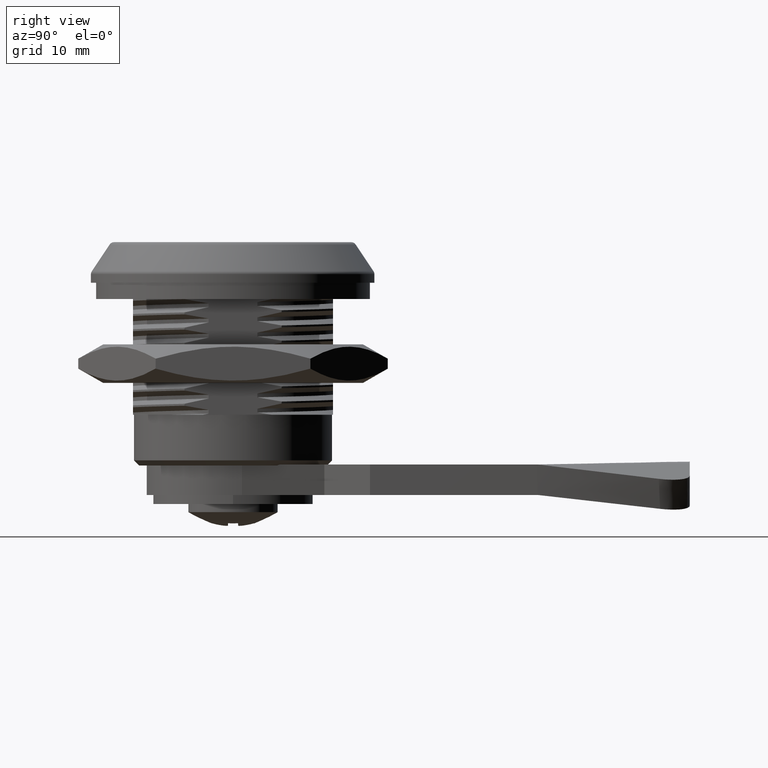
[diagram: clean part render]
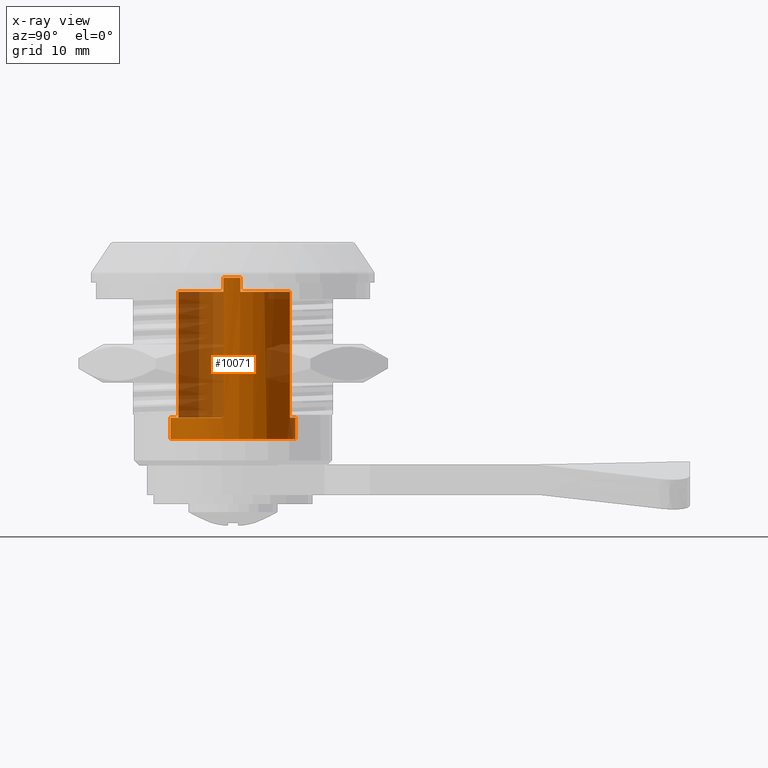
[diagram: x-ray — body ghosted, one internal face saturated and labeled with its STEP entity id]
A machine part, right view, then the same camera in x-ray: the body is ghosted and one INTERNAL B-rep face — a face not visible from any outside direction — is saturated and labeled: STEP entity #10071.
In plain terms, the highlighted cylindrical surface (bore or boss wall) has radius 6.15 mm, axis along (-0, 0, -1).
Its self-contained STEP definition (entity closure, byte-faithful):
#678=LINE('',#13985,#1513);
#679=LINE('',#13989,#1514);
#680=LINE('',#13993,#1515);
#681=LINE('',#13997,#1516);
#682=LINE('',#14000,#1517);
#1513=VECTOR('',#11517,13.6);
#1514=VECTOR('',#11520,1.4);
#1515=VECTOR('',#11523,12.4);
#1516=VECTOR('',#11526,12.4);
#1517=VECTOR('',#11529,12.4);
#2337=B_SPLINE_CURVE_WITH_KNOTS('',3,(#13974,#13975,#13976,#13977,#13978,
#13979,#13980,#13981,#13982,#13983),.UNSPECIFIED.,.F.,.F.,(4,2,2,2,4),(0.0912681116688724,
0.0988971526518753,0.106526193634878,0.114080784898945,0.121635376163012),
 .UNSPECIFIED.);
#2618=FACE_BOUND('',#3289,.T.);
#2694=FACE_OUTER_BOUND('',#3288,.T.);
#3288=EDGE_LOOP('',(#6847));
#3289=EDGE_LOOP('',(#6848,#6849,#6850,#6851,#6852,#6853,#6854,#6855,#6856,
#6857,#6858));
#3961=CIRCLE('',#10693,6.15);
#3962=CIRCLE('',#10694,6.15);
#3963=CIRCLE('',#10695,6.15);
#3964=CIRCLE('',#10696,6.15);
#3965=CIRCLE('',#10697,6.15);
#3966=CIRCLE('',#10698,6.15);
#4262=VERTEX_POINT('',#13968);
#4263=VERTEX_POINT('',#13970);
#4264=VERTEX_POINT('',#13971);
#4265=VERTEX_POINT('',#13973);
#4266=VERTEX_POINT('',#13984);
#4267=VERTEX_POINT('',#13986);
#4268=VERTEX_POINT('',#13988);
#4269=VERTEX_POINT('',#13990);
#4270=VERTEX_POINT('',#13992);
#4271=VERTEX_POINT('',#13994);
#4272=VERTEX_POINT('',#13996);
#4273=VERTEX_POINT('',#13998);
#5293=EDGE_CURVE('',#4262,#4262,#3961,.T.);
#5294=EDGE_CURVE('',#4263,#4264,#3962,.T.);
#5295=EDGE_CURVE('',#4263,#4265,#2337,.T.);
#5296=EDGE_CURVE('',#4266,#4265,#678,.T.);
#5297=EDGE_CURVE('',#4266,#4267,#3963,.T.);
#5298=EDGE_CURVE('',#4267,#4268,#679,.T.);
#5299=EDGE_CURVE('',#4268,#4269,#3964,.T.);
#5300=EDGE_CURVE('',#4270,#4269,#680,.T.);
#5301=EDGE_CURVE('',#4271,#4270,#3965,.T.);
#5302=EDGE_CURVE('',#4271,#4272,#681,.T.);
#5303=EDGE_CURVE('',#4272,#4273,#3966,.T.);
#5304=EDGE_CURVE('',#4264,#4273,#682,.T.);
#6847=ORIENTED_EDGE('',*,*,#5293,.F.);
#6848=ORIENTED_EDGE('',*,*,#5294,.F.);
#6849=ORIENTED_EDGE('',*,*,#5295,.T.);
#6850=ORIENTED_EDGE('',*,*,#5296,.F.);
#6851=ORIENTED_EDGE('',*,*,#5297,.T.);
#6852=ORIENTED_EDGE('',*,*,#5298,.T.);
#6853=ORIENTED_EDGE('',*,*,#5299,.T.);
#6854=ORIENTED_EDGE('',*,*,#5300,.F.);
#6855=ORIENTED_EDGE('',*,*,#5301,.F.);
#6856=ORIENTED_EDGE('',*,*,#5302,.T.);
#6857=ORIENTED_EDGE('',*,*,#5303,.T.);
#6858=ORIENTED_EDGE('',*,*,#5304,.F.);
#9910=CYLINDRICAL_SURFACE('',#10692,6.15);
#10071=ADVANCED_FACE('',(#2694,#2618),#9910,.F.);
#10692=AXIS2_PLACEMENT_3D('',#13967,#11511,#11512);
#10693=AXIS2_PLACEMENT_3D('',#13969,#11513,#11514);
#10694=AXIS2_PLACEMENT_3D('',#13972,#11515,#11516);
#10695=AXIS2_PLACEMENT_3D('',#13987,#11518,#11519);
#10696=AXIS2_PLACEMENT_3D('',#13991,#11521,#11522);
#10697=AXIS2_PLACEMENT_3D('',#13995,#11524,#11525);
#10698=AXIS2_PLACEMENT_3D('',#13999,#11527,#11528);
#11511=DIRECTION('center_axis',(0.,1.,0.));
#11512=DIRECTION('ref_axis',(0.,0.,1.));
#11513=DIRECTION('center_axis',(0.,-1.,0.));
#11514=DIRECTION('ref_axis',(0.,0.,-1.));
#11515=DIRECTION('center_axis',(0.,1.,0.));
#11516=DIRECTION('ref_axis',(0.,0.,-1.));
#11517=DIRECTION('',(0.,1.,0.));
#11518=DIRECTION('center_axis',(0.,-1.,0.));
#11519=DIRECTION('ref_axis',(0.,0.,-1.));
#11520=DIRECTION('',(0.,1.,0.));
#11521=DIRECTION('center_axis',(0.,-1.,0.));
#11522=DIRECTION('ref_axis',(0.,0.,-1.));
#11523=DIRECTION('',(0.,-1.,0.));
#11524=DIRECTION('center_axis',(0.,1.,0.));
#11525=DIRECTION('ref_axis',(0.,0.,-1.));
#11526=DIRECTION('',(0.,-1.,0.));
#11527=DIRECTION('center_axis',(0.,-1.,0.));
#11528=DIRECTION('ref_axis',(0.,0.,-1.));
#11529=DIRECTION('',(0.,-1.,0.));
#13967=CARTESIAN_POINT('Origin',(0.,-24.9487373415292,0.));
#13968=CARTESIAN_POINT('',(0.,19.5222649901887,-6.15));
#13969=CARTESIAN_POINT('Origin',(0.,19.5222649901887,0.));
#13970=CARTESIAN_POINT('',(6.04152298679727,17.4,-1.15000000000006));
#13971=CARTESIAN_POINT('',(-3.,17.4,-5.36865905045198));
#13972=CARTESIAN_POINT('Origin',(0.,17.4,0.));
#13973=CARTESIAN_POINT('',(6.07618301238531,17.2,-0.950000000000063));
#13974=CARTESIAN_POINT('Ctrl Pts',(6.04152298679727,17.4,-1.15000000000007));
#13975=CARTESIAN_POINT('Ctrl Pts',(6.04627821559427,17.4,-1.12501841383962));
#13976=CARTESIAN_POINT('Ctrl Pts',(6.05118600548376,17.395035223443,-1.09829833835802));
#13977=CARTESIAN_POINT('Ctrl Pts',(6.0599276955195,17.3746737190757,-1.04900818221098));
#13978=CARTESIAN_POINT('Ctrl Pts',(6.06376564743862,17.3592802051198,-1.02643749264527));
#13979=CARTESIAN_POINT('Ctrl Pts',(6.06967464703085,17.3237367869638,-0.990894074489284));
#13980=CARTESIAN_POINT('Ctrl Pts',(6.07214954983587,17.3012926153455,-0.975495676143038));
#13981=CARTESIAN_POINT('Ctrl Pts',(6.07540154642663,17.2520147050378,-0.955049501581927));
#13982=CARTESIAN_POINT('Ctrl Pts',(6.07618301238531,17.2251819708802,-0.950000000000067));
#13983=CARTESIAN_POINT('Ctrl Pts',(6.07618301238531,17.2,-0.950000000000067));
#13984=CARTESIAN_POINT('',(6.07618301238531,3.6,-0.950000000000063));
#13985=CARTESIAN_POINT('',(6.07618301238531,3.4,-0.950000000000063));
#13986=CARTESIAN_POINT('',(6.10695301027855,3.6,0.726377952755841));
#13987=CARTESIAN_POINT('Origin',(0.,3.6,0.));
#13988=CARTESIAN_POINT('',(6.10695301027855,5.,0.726377952755841));
#13989=CARTESIAN_POINT('',(6.10695301027855,-24.9487373415292,0.726377952755841));
#13990=CARTESIAN_POINT('',(2.55,5.,5.59642743185329));
#13991=CARTESIAN_POINT('Origin',(0.,5.,0.));
#13992=CARTESIAN_POINT('',(2.55,17.4,5.59642743185329));
#13993=CARTESIAN_POINT('',(2.55,17.4,5.59642743185329));
#13994=CARTESIAN_POINT('',(-2.55,17.4,5.59642743185329));
#13995=CARTESIAN_POINT('Origin',(0.,17.4,0.));
#13996=CARTESIAN_POINT('',(-2.55,5.,5.59642743185329));
#13997=CARTESIAN_POINT('',(-2.55,17.4,5.59642743185329));
#13998=CARTESIAN_POINT('',(-3.,5.,-5.36865905045198));
#13999=CARTESIAN_POINT('Origin',(0.,5.,0.));
#14000=CARTESIAN_POINT('',(-3.,-24.9487373415292,-5.36865905045198));